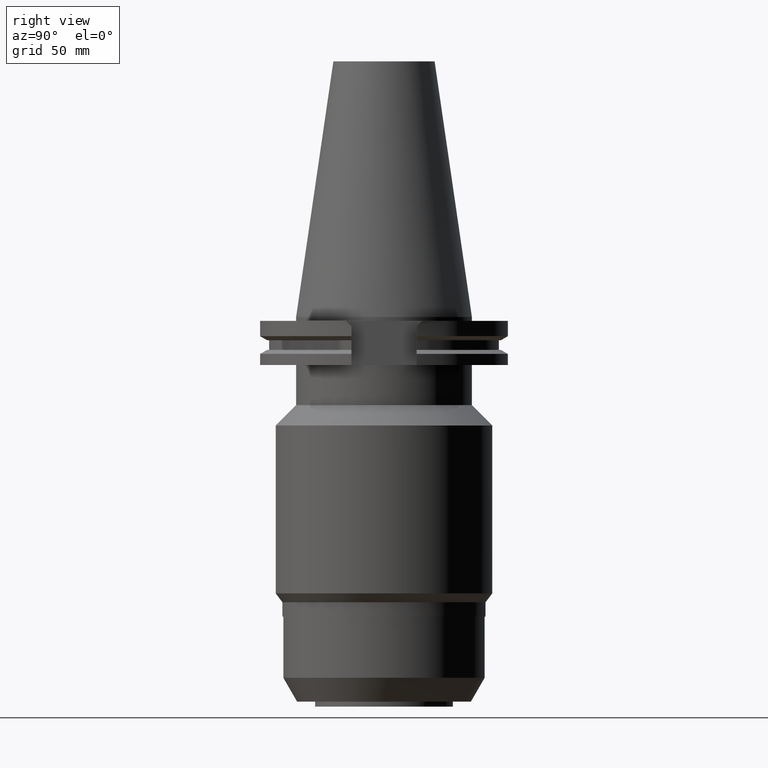
[diagram: clean part render]
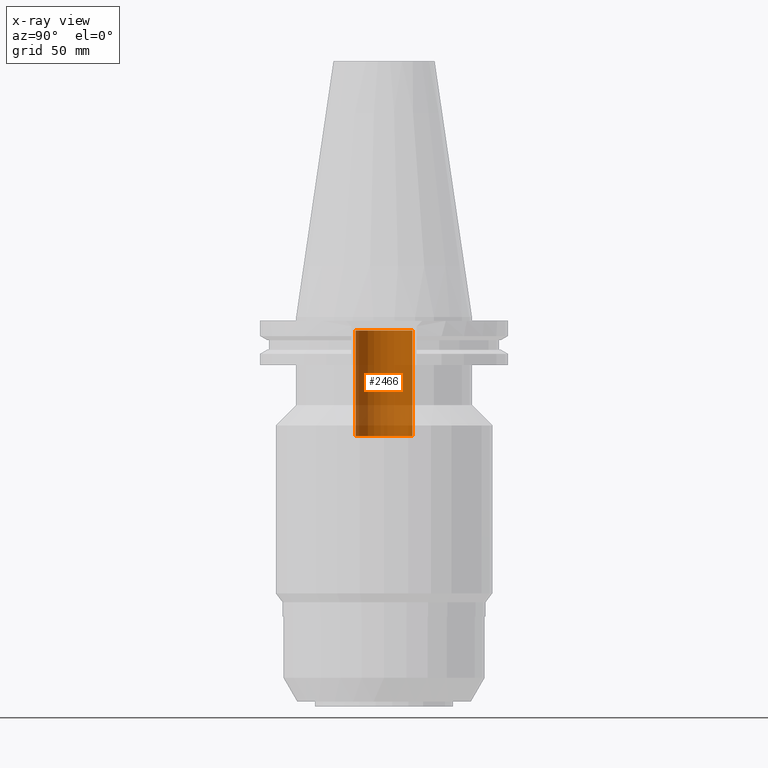
[diagram: x-ray — body ghosted, one internal face saturated and labeled with its STEP entity id]
A machine part, right view, then the same camera in x-ray: the body is ghosted and one INTERNAL B-rep face — a face not visible from any outside direction — is saturated and labeled: STEP entity #2466.
In plain terms, the highlighted cylindrical surface (edge-blend (fillet) strip) has radius 11.25 mm, axis along (0, 0, -1).
Its self-contained STEP definition (entity closure, byte-faithful):
#1166=CARTESIAN_POINT('',(0.E0,2.625887666732E-14,-4.74E1));
#1167=DIRECTION('',(0.E0,0.E0,-1.E0));
#1168=DIRECTION('',(0.E0,-1.E0,0.E0));
#1169=AXIS2_PLACEMENT_3D('',#1166,#1167,#1168);
#1182=DIRECTION('',(0.E0,0.E0,1.E0));
#1183=VECTOR('',#1182,4.2E1);
#1184=CARTESIAN_POINT('',(0.E0,-1.125E1,-4.74E1));
#1185=LINE('',#1184,#1183);
#1189=DIRECTION('',(0.E0,0.E0,1.E0));
#1190=VECTOR('',#1189,4.2E1);
#1191=CARTESIAN_POINT('',(0.E0,1.125E1,-4.74E1));
#1192=LINE('',#1191,#1190);
#1204=CARTESIAN_POINT('',(0.E0,2.625887666732E-14,-5.4E0));
#1205=DIRECTION('',(0.E0,0.E0,1.E0));
#1206=DIRECTION('',(0.E0,1.E0,0.E0));
#1207=AXIS2_PLACEMENT_3D('',#1204,#1205,#1206);
#1342=CARTESIAN_POINT('',(0.E0,-1.125E1,-5.4E0));
#1343=CARTESIAN_POINT('',(0.E0,1.125E1,-5.4E0));
#1344=VERTEX_POINT('',#1342);
#1345=VERTEX_POINT('',#1343);
#1346=CARTESIAN_POINT('',(0.E0,1.125E1,-4.74E1));
#1347=VERTEX_POINT('',#1346);
#1348=CARTESIAN_POINT('',(0.E0,-1.125E1,-4.74E1));
#1349=VERTEX_POINT('',#1348);
#2452=CARTESIAN_POINT('',(0.E0,2.625887666732E-14,1.1442E2));
#2453=DIRECTION('',(0.E0,0.E0,-1.E0));
#2454=DIRECTION('',(0.E0,-1.E0,0.E0));
#2455=AXIS2_PLACEMENT_3D('',#2452,#2453,#2454);
#2456=CYLINDRICAL_SURFACE('',#2455,1.125E1);
#2458=ORIENTED_EDGE('',*,*,#2457,.F.);
#2459=ORIENTED_EDGE('',*,*,#2445,.F.);
#2461=ORIENTED_EDGE('',*,*,#2460,.T.);
#2463=ORIENTED_EDGE('',*,*,#2462,.F.);
#2464=EDGE_LOOP('',(#2458,#2459,#2461,#2463));
#2465=FACE_OUTER_BOUND('',#2464,.F.);
#1170=CIRCLE('',#1169,1.125E1);
#1208=CIRCLE('',#1207,1.125E1);
#2445=EDGE_CURVE('',#1349,#1347,#1170,.T.);
#2457=EDGE_CURVE('',#1347,#1345,#1192,.T.);
#2460=EDGE_CURVE('',#1349,#1344,#1185,.T.);
#2462=EDGE_CURVE('',#1345,#1344,#1208,.T.);
#2466=ADVANCED_FACE('',(#2465),#2456,.F.);